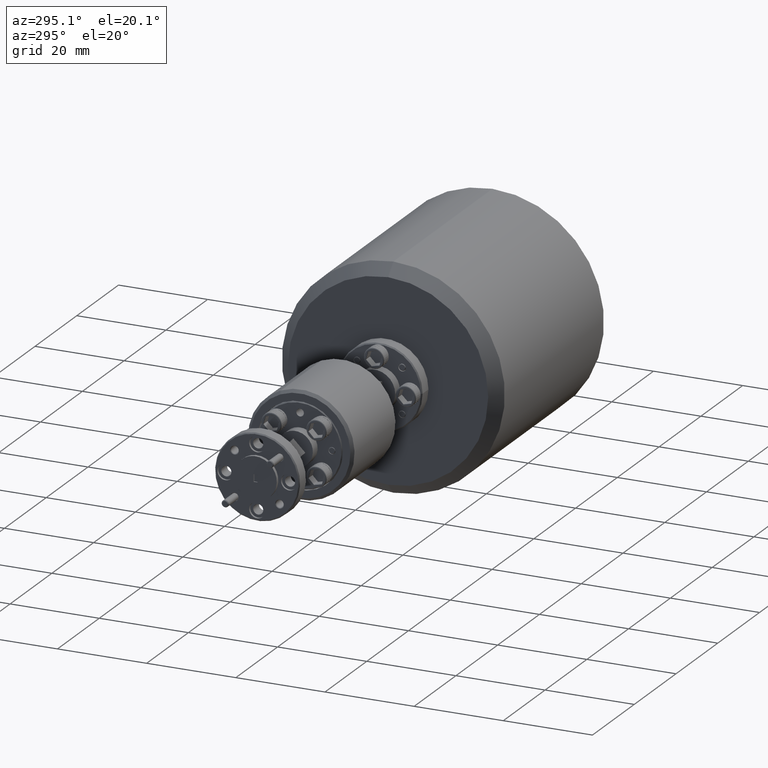
[diagram: clean part render]
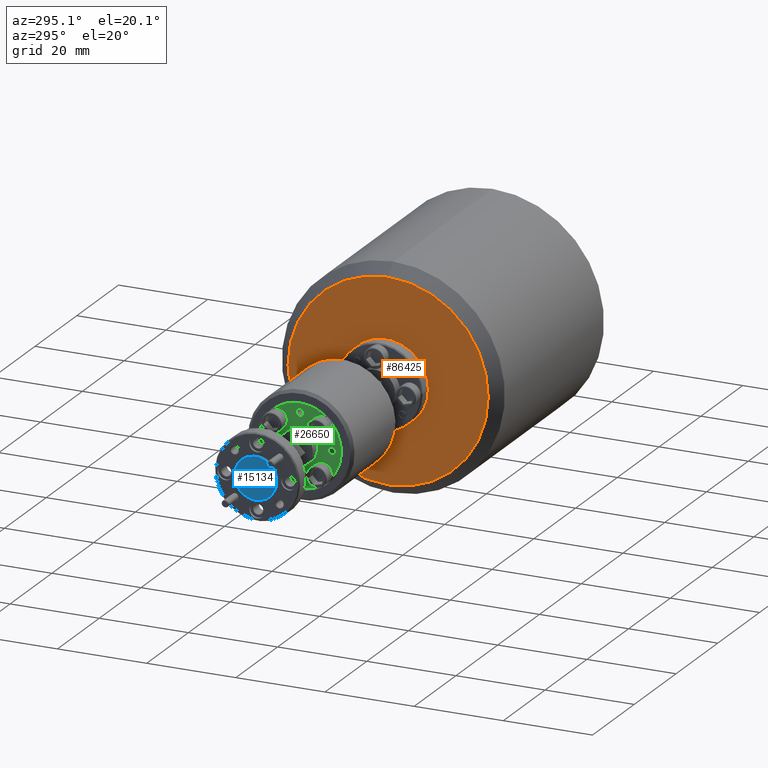
[diagram: same view with three faces highlighted in distinct colors, each labeled with its STEP entity id]
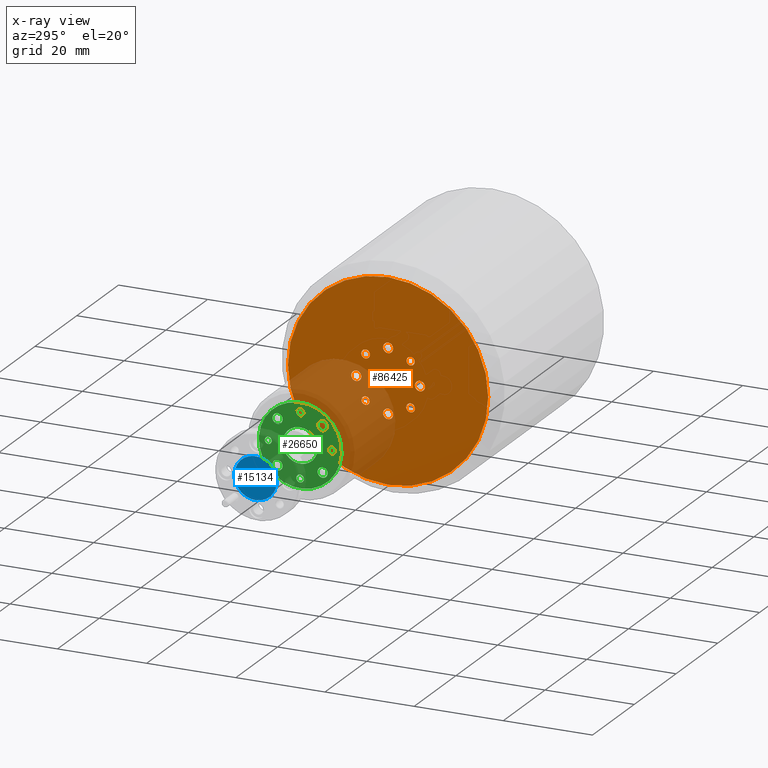
[diagram: x-ray of the same camera — body ghosted, the three highlighted faces saturated]
A machine part, auxiliary view with three faces highlighted in distinct colors.
The next image is the same camera in x-ray (body ghosted, the three faces saturated) — at least one of them is partly hidden behind the body in this view.
Their STEP definitions:

[orange] entity #86425 — the highlighted planar face has unit normal (-1, 0, 0).
#535 = VERTEX_POINT ( 'NONE', #74663 ) ;
#812 = VERTEX_POINT ( 'NONE', #90064 ) ;
#909 = AXIS2_PLACEMENT_3D ( 'NONE', #101327, #20185, #20886 ) ;
#1789 = ORIENTED_EDGE ( 'NONE', *, *, #17809, .F. ) ;
#1866 = EDGE_CURVE ( 'NONE', #62668, #101204, #70706, .T. ) ;
#2116 = EDGE_CURVE ( 'NONE', #50472, #31607, #41455, .T. ) ;
#2375 = VERTEX_POINT ( 'NONE', #60095 ) ;
#2495 = ORIENTED_EDGE ( 'NONE', *, *, #11476, .F. ) ;
#2834 = VERTEX_POINT ( 'NONE', #27689 ) ;
#3032 = FACE_BOUND ( 'NONE', #82698, .T. ) ;
#3375 = EDGE_CURVE ( 'NONE', #30090, #74505, #29817, .T. ) ;
#3438 = DIRECTION ( 'NONE',  ( 0.0000000000000000000, 0.0000000000000000000, 1.000000000000000000 ) ) ;
#3970 = VERTEX_POINT ( 'NONE', #10180 ) ;
#5184 = CARTESIAN_POINT ( 'NONE',  ( 4.490802399633938800, 39.83549298320465900, 31.58199548229007900 ) ) ;
#5553 = ORIENTED_EDGE ( 'NONE', *, *, #78928, .F. ) ;
#5640 = VERTEX_POINT ( 'NONE', #52466 ) ;
#6348 = DIRECTION ( 'NONE',  ( -1.000000000000000000, -0.0000000000000000000, -0.0000000000000000000 ) ) ;
#7436 = CIRCLE ( 'NONE', #34551, 1.130300000000000700 ) ;
#7467 = EDGE_CURVE ( 'NONE', #101204, #68914, #90031, .T. ) ;
#7488 = ORIENTED_EDGE ( 'NONE', *, *, #65840, .F. ) ;
#7533 = AXIS2_PLACEMENT_3D ( 'NONE', #15564, #31212, #64905 ) ;
#8604 = EDGE_CURVE ( 'NONE', #98188, #56234, #41844, .T. ) ;
#8811 = ORIENTED_EDGE ( 'NONE', *, *, #101496, .F. ) ;
#9626 = CARTESIAN_POINT ( 'NONE',  ( 4.490802399633938800, 34.78858904316376800, 29.49149942233091100 ) ) ;
#9819 = CARTESIAN_POINT ( 'NONE',  ( 4.490802399633938800, 34.78858904316376800, 43.77264942233091500 ) ) ;
#10180 = CARTESIAN_POINT ( 'NONE',  ( 4.490802399633938800, 35.91888458388530100, 43.76947442233272800 ) ) ;
#10282 = DIRECTION ( 'NONE',  ( 1.000000000000000000, -0.0000000000000000000, -0.0000000000000000000 ) ) ;
#10689 = FACE_OUTER_BOUND ( 'NONE', #21624, .T. ) ;
#11013 = DIRECTION ( 'NONE',  ( 0.0000000000000000000, 0.0000000000000000000, 1.000000000000000000 ) ) ;
#11293 = VERTEX_POINT ( 'NONE', #17413 ) ;
#11476 = EDGE_CURVE ( 'NONE', #56577, #90159, #53044, .T. ) ;
#11696 = CARTESIAN_POINT ( 'NONE',  ( 4.490802399633938800, 29.74168510312287600, 41.67580336237174500 ) ) ;
#11984 = ORIENTED_EDGE ( 'NONE', *, *, #40346, .F. ) ;
#11998 = EDGE_CURVE ( 'NONE', #91544, #41676, #41589, .T. ) ;
#12208 = AXIS2_PLACEMENT_3D ( 'NONE', #41726, #49860, #98432 ) ;
#12281 = CIRCLE ( 'NONE', #38792, 0.9207499999999979600 ) ;
#12807 = VERTEX_POINT ( 'NONE', #39632 ) ;
#13026 = DIRECTION ( 'NONE',  ( 0.0000000000000000000, 0.0000000000000000000, 1.000000000000000000 ) ) ;
#13109 = EDGE_CURVE ( 'NONE', #14314, #79910, #12281, .T. ) ;
#13198 = FACE_BOUND ( 'NONE', #77899, .T. ) ;
#13614 = AXIS2_PLACEMENT_3D ( 'NONE', #39358, #55275, #72011 ) ;
#13827 = AXIS2_PLACEMENT_3D ( 'NONE', #9819, #34984, #98759 ) ;
#14314 = VERTEX_POINT ( 'NONE', #87419 ) ;
#14425 = FACE_BOUND ( 'NONE', #17844, .T. ) ;
#14848 = EDGE_CURVE ( 'NONE', #2375, #56577, #86833, .T. ) ;
#15265 = CARTESIAN_POINT ( 'NONE',  ( 4.490802399633938800, 27.64801404316191500, 37.75919496305244400 ) ) ;
#15406 = VERTEX_POINT ( 'NONE', #17608 ) ;
#15413 = CARTESIAN_POINT ( 'NONE',  ( 4.490802399633938800, 41.92916404316562100, 35.49860388160937700 ) ) ;
#15446 = CIRCLE ( 'NONE', #13827, 1.130299999999986800 ) ;
#15449 = AXIS2_PLACEMENT_3D ( 'NONE', #105224, #48109, #55934 ) ;
#15564 = CARTESIAN_POINT ( 'NONE',  ( 4.490802399633938800, 29.74168510312287600, 41.67580336237174500 ) ) ;
#15869 = EDGE_LOOP ( 'NONE', ( #33748, #41042, #8811, #104111 ) ) ;
#16828 = DIRECTION ( 'NONE',  ( 0.0000000000000000000, 0.0000000000000000000, 1.000000000000000000 ) ) ;
#16855 = CIRCLE ( 'NONE', #86363, 0.9778999999999968800 ) ;
#17413 = CARTESIAN_POINT ( 'NONE',  ( 4.490802399633938800, 35.42358904316377300, 37.89889942233091300 ) ) ;
#17608 = CARTESIAN_POINT ( 'NONE',  ( 4.490802399633938800, 41.92916404316546400, 37.75919496305244400 ) ) ;
#17809 = EDGE_CURVE ( 'NONE', #15406, #75875, #43421, .T. ) ;
#17844 = EDGE_LOOP ( 'NONE', ( #27220, #97898 ) ) ;
#17849 = DIRECTION ( 'NONE',  ( -1.000000000000000000, -0.0000000000000000000, -0.0000000000000000000 ) ) ;
#17859 = EDGE_CURVE ( 'NONE', #38778, #3970, #96713, .T. ) ;
#18892 = EDGE_LOOP ( 'NONE', ( #32872, #48299, #80014, #68879, #41364, #25110 ) ) ;
#19201 = VERTEX_POINT ( 'NONE', #46557 ) ;
#20185 = DIRECTION ( 'NONE',  ( -1.000000000000000000, -0.0000000000000000000, -0.0000000000000000000 ) ) ;
#20245 = CIRCLE ( 'NONE', #59397, 1.130299999999986800 ) ;
#20840 = PLANE ( 'NONE',  #47114 ) ;
#20886 = DIRECTION ( 'NONE',  ( 0.0000000000000000000, 0.0000000000000000000, 1.000000000000000000 ) ) ;
#21087 = ORIENTED_EDGE ( 'NONE', *, *, #8604, .F. ) ;
#21265 = CARTESIAN_POINT ( 'NONE',  ( 4.490802399633938800, 27.64483904316376300, 36.62889942233091000 ) ) ;
#21518 = ORIENTED_EDGE ( 'NONE', *, *, #42398, .F. ) ;
#21624 = EDGE_LOOP ( 'NONE', ( #62842, #55553 ) ) ;
#22291 = AXIS2_PLACEMENT_3D ( 'NONE', #9626, #90416, #91448 ) ;
#22454 = EDGE_CURVE ( 'NONE', #79910, #14314, #53743, .T. ) ;
#23267 = EDGE_LOOP ( 'NONE', ( #21087, #56203 ) ) ;
#23636 = ORIENTED_EDGE ( 'NONE', *, *, #36342, .F. ) ;
#23913 = VECTOR ( 'NONE', #36351, 1000.000000000000000 ) ;
#24032 = AXIS2_PLACEMENT_3D ( 'NONE', #103836, #6348, #47067 ) ;
#24593 = DIRECTION ( 'NONE',  ( -1.000000000000000000, -0.0000000000000000000, -0.0000000000000000000 ) ) ;
#24608 = FACE_BOUND ( 'NONE', #23267, .T. ) ;
#24645 = AXIS2_PLACEMENT_3D ( 'NONE', #34765, #51683, #68100 ) ;
#24741 = VERTEX_POINT ( 'NONE', #99222 ) ;
#24786 = EDGE_CURVE ( 'NONE', #24741, #812, #37092, .T. ) ;
#24961 = DIRECTION ( 'NONE',  ( -1.000000000000000000, -0.0000000000000000000, -0.0000000000000000000 ) ) ;
#25110 = ORIENTED_EDGE ( 'NONE', *, *, #65501, .F. ) ;
#25325 = DIRECTION ( 'NONE',  ( 0.0000000000000000000, 0.0000000000000000000, 1.000000000000000000 ) ) ;
#25975 = DIRECTION ( 'NONE',  ( -1.000000000000000000, -0.0000000000000000000, -0.0000000000000000000 ) ) ;
#26189 = ORIENTED_EDGE ( 'NONE', *, *, #14848, .F. ) ;
#26313 = DIRECTION ( 'NONE',  ( 0.0000000000000000000, 0.0000000000000000000, 1.000000000000000000 ) ) ;
#26447 = DIRECTION ( 'NONE',  ( -1.000000000000000000, -0.0000000000000000000, -0.0000000000000000000 ) ) ;
#26665 = CARTESIAN_POINT ( 'NONE',  ( 4.490802399633938800, 27.64483904316376300, 36.62889942233091000 ) ) ;
#26923 = DIRECTION ( 'NONE',  ( 0.0000000000000000000, 0.0000000000000000000, -1.000000000000000000 ) ) ;
#27220 = ORIENTED_EDGE ( 'NONE', *, *, #85645, .F. ) ;
#27689 = CARTESIAN_POINT ( 'NONE',  ( 4.490802399633938800, 29.74168510312292600, 32.55989548229001700 ) ) ;
#28290 = CARTESIAN_POINT ( 'NONE',  ( 4.490802399633938800, 57.24853904316376000, 36.62889942233091000 ) ) ;
#28941 = LINE ( 'NONE', #101375, #96143 ) ;
#29817 = CIRCLE ( 'NONE', #84027, 1.130300000000000700 ) ;
#30090 = VERTEX_POINT ( 'NONE', #49208 ) ;
#31212 = DIRECTION ( 'NONE',  ( -1.000000000000000000, -0.0000000000000000000, -0.0000000000000000000 ) ) ;
#31607 = VERTEX_POINT ( 'NONE', #63014 ) ;
#32111 = CARTESIAN_POINT ( 'NONE',  ( 4.490802399633938800, 34.78858904316376800, 42.63599942233091200 ) ) ;
#32429 = CARTESIAN_POINT ( 'NONE',  ( 4.490802399633938800, 39.83549298320465900, 31.58199548229007900 ) ) ;
#32598 = ORIENTED_EDGE ( 'NONE', *, *, #13109, .F. ) ;
#32710 = EDGE_LOOP ( 'NONE', ( #70815, #35278 ) ) ;
#32872 = ORIENTED_EDGE ( 'NONE', *, *, #64663, .F. ) ;
#33748 = ORIENTED_EDGE ( 'NONE', *, *, #79290, .F. ) ;
#34206 = CARTESIAN_POINT ( 'NONE',  ( 4.490802399633938800, 27.64483904316376300, 36.62889942233091000 ) ) ;
#34551 = AXIS2_PLACEMENT_3D ( 'NONE', #67618, #26447, #83847 ) ;
#34765 = CARTESIAN_POINT ( 'NONE',  ( 4.490802399633938800, 41.93233904316376500, 36.62889942233091000 ) ) ;
#34866 = DIRECTION ( 'NONE',  ( 0.0000000000000000000, 0.0000000000000000000, 1.000000000000000000 ) ) ;
#34984 = DIRECTION ( 'NONE',  ( -1.000000000000000000, -0.0000000000000000000, -0.0000000000000000000 ) ) ;
#35278 = ORIENTED_EDGE ( 'NONE', *, *, #55249, .F. ) ;
#35367 = CARTESIAN_POINT ( 'NONE',  ( 4.490802399633938800, 34.15358904316377000, 35.35889942233091400 ) ) ;
#35859 = DIRECTION ( 'NONE',  ( -1.000000000000000000, -0.0000000000000000000, -0.0000000000000000000 ) ) ;
#36336 = CARTESIAN_POINT ( 'NONE',  ( 4.490802399633938800, 41.92598904316376700, 37.75919942233091600 ) ) ;
#36342 = EDGE_CURVE ( 'NONE', #75875, #535, #65612, .T. ) ;
#36351 = DIRECTION ( 'NONE',  ( 0.0000000000000000000, 1.000000000000000000, 0.0000000000000000000 ) ) ;
#36827 = ORIENTED_EDGE ( 'NONE', *, *, #80069, .F. ) ;
#37092 = CIRCLE ( 'NONE', #99146, 22.45994999999999200 ) ;
#37559 = CARTESIAN_POINT ( 'NONE',  ( 4.490802399633938800, 41.92598904316376700, 36.62889942233091000 ) ) ;
#37752 = CIRCLE ( 'NONE', #909, 1.130300000000000700 ) ;
#38625 = AXIS2_PLACEMENT_3D ( 'NONE', #51087, #17849, #34866 ) ;
#38778 = VERTEX_POINT ( 'NONE', #71822 ) ;
#38792 = AXIS2_PLACEMENT_3D ( 'NONE', #5184, #69425, #84962 ) ;
#39358 = CARTESIAN_POINT ( 'NONE',  ( 4.490802399633938800, 34.78858904316376800, 29.48514942233091300 ) ) ;
#39632 = CARTESIAN_POINT ( 'NONE',  ( 4.490802399633938800, 27.64801404316191500, 35.49860388160937700 ) ) ;
#39879 = VERTEX_POINT ( 'NONE', #45636 ) ;
#40285 = EDGE_CURVE ( 'NONE', #86826, #30090, #7436, .T. ) ;
#40346 = EDGE_CURVE ( 'NONE', #19201, #11293, #56859, .T. ) ;
#41042 = ORIENTED_EDGE ( 'NONE', *, *, #17859, .F. ) ;
#41218 = CARTESIAN_POINT ( 'NONE',  ( 4.490802399633938800, 41.92598904316376700, 36.62889942233091000 ) ) ;
#41364 = ORIENTED_EDGE ( 'NONE', *, *, #73532, .F. ) ;
#41455 = LINE ( 'NONE', #35367, #75782 ) ;
#41589 = CIRCLE ( 'NONE', #12208, 0.9778999999999968800 ) ;
#41676 = VERTEX_POINT ( 'NONE', #89758 ) ;
#41726 = CARTESIAN_POINT ( 'NONE',  ( 4.490802399633938800, 39.83549298320460300, 41.67580336237180200 ) ) ;
#41844 = CIRCLE ( 'NONE', #42488, 0.9207499999999979600 ) ;
#41960 = DIRECTION ( 'NONE',  ( 0.0000000000000000000, 0.0000000000000000000, 1.000000000000000000 ) ) ;
#42215 = CARTESIAN_POINT ( 'NONE',  ( 4.490802399633938800, 39.83549298320460300, 42.65370336237180000 ) ) ;
#42398 = EDGE_CURVE ( 'NONE', #11293, #50472, #95263, .T. ) ;
#42488 = AXIS2_PLACEMENT_3D ( 'NONE', #11696, #60663, #11013 ) ;
#43421 = CIRCLE ( 'NONE', #24032, 1.130299999999986800 ) ;
#43433 = VERTEX_POINT ( 'NONE', #81139 ) ;
#43526 = DIRECTION ( 'NONE',  ( -1.000000000000000000, -0.0000000000000000000, -0.0000000000000000000 ) ) ;
#43790 = AXIS2_PLACEMENT_3D ( 'NONE', #21265, #35859, #45348 ) ;
#45348 = DIRECTION ( 'NONE',  ( 0.0000000000000000000, 0.0000000000000000000, 1.000000000000000000 ) ) ;
#45400 = AXIS2_PLACEMENT_3D ( 'NONE', #73622, #24961, #74650 ) ;
#45636 = CARTESIAN_POINT ( 'NONE',  ( 4.490802399633938800, 29.74168510312292600, 30.60409548229002000 ) ) ;
#46557 = CARTESIAN_POINT ( 'NONE',  ( 4.490802399633938800, 34.15358904316377000, 37.89889942233091300 ) ) ;
#46868 = EDGE_CURVE ( 'NONE', #39879, #2834, #94052, .T. ) ;
#47067 = DIRECTION ( 'NONE',  ( 0.0000000000000000000, 0.0000000000000000000, 1.000000000000000000 ) ) ;
#47114 = AXIS2_PLACEMENT_3D ( 'NONE', #28290, #70163, #13026 ) ;
#48109 = DIRECTION ( 'NONE',  ( -1.000000000000000000, -0.0000000000000000000, -0.0000000000000000000 ) ) ;
#48281 = CIRCLE ( 'NONE', #68127, 1.130300000000000700 ) ;
#48299 = ORIENTED_EDGE ( 'NONE', *, *, #7467, .F. ) ;
#48669 = FACE_BOUND ( 'NONE', #18892, .T. ) ;
#49094 = VERTEX_POINT ( 'NONE', #49439 ) ;
#49208 = CARTESIAN_POINT ( 'NONE',  ( 4.490802399633938800, 41.92598904316376700, 35.49859942233091200 ) ) ;
#49439 = CARTESIAN_POINT ( 'NONE',  ( 4.490802399633938800, 33.65829350244223400, 43.76947442233272800 ) ) ;
#49860 = DIRECTION ( 'NONE',  ( -1.000000000000000000, -0.0000000000000000000, -0.0000000000000000000 ) ) ;
#50074 = AXIS2_PLACEMENT_3D ( 'NONE', #32429, #98320, #25325 ) ;
#50472 = VERTEX_POINT ( 'NONE', #63738 ) ;
#51087 = CARTESIAN_POINT ( 'NONE',  ( 4.490802399633938800, 34.78858904316376800, 29.49149942233091100 ) ) ;
#51193 = FACE_BOUND ( 'NONE', #32710, .T. ) ;
#51683 = DIRECTION ( 'NONE',  ( -1.000000000000000000, -0.0000000000000000000, -0.0000000000000000000 ) ) ;
#52266 = DIRECTION ( 'NONE',  ( 0.0000000000000000000, 0.0000000000000000000, 1.000000000000000000 ) ) ;
#52466 = CARTESIAN_POINT ( 'NONE',  ( 4.490802399633938800, 27.65118904316376500, 37.75919942233091600 ) ) ;
#52627 = DIRECTION ( 'NONE',  ( -1.000000000000000000, -0.0000000000000000000, -0.0000000000000000000 ) ) ;
#53044 = CIRCLE ( 'NONE', #22291, 1.130299999999997200 ) ;
#53616 = CARTESIAN_POINT ( 'NONE',  ( 4.490802399633938800, 34.78858904316376800, 30.62179942233090900 ) ) ;
#53743 = CIRCLE ( 'NONE', #50074, 0.9207499999999979600 ) ;
#53761 = FACE_BOUND ( 'NONE', #68780, .T. ) ;
#55249 = EDGE_CURVE ( 'NONE', #41676, #91544, #16855, .T. ) ;
#55275 = DIRECTION ( 'NONE',  ( -1.000000000000000000, -0.0000000000000000000, -0.0000000000000000000 ) ) ;
#55553 = ORIENTED_EDGE ( 'NONE', *, *, #88459, .F. ) ;
#55934 = DIRECTION ( 'NONE',  ( 0.0000000000000000000, 0.0000000000000000000, 1.000000000000000000 ) ) ;
#56203 = ORIENTED_EDGE ( 'NONE', *, *, #62234, .F. ) ;
#56234 = VERTEX_POINT ( 'NONE', #67077 ) ;
#56473 = DIRECTION ( 'NONE',  ( 0.0000000000000000000, 0.0000000000000000000, 1.000000000000000000 ) ) ;
#56577 = VERTEX_POINT ( 'NONE', #96629 ) ;
#56859 = LINE ( 'NONE', #84895, #23913 ) ;
#58081 = DIRECTION ( 'NONE',  ( -0.0000000000000000000, -1.000000000000000000, -0.0000000000000000000 ) ) ;
#59025 = ORIENTED_EDGE ( 'NONE', *, *, #2116, .F. ) ;
#59033 = EDGE_CURVE ( 'NONE', #82099, #49094, #60739, .T. ) ;
#59397 = AXIS2_PLACEMENT_3D ( 'NONE', #26665, #92530, #91509 ) ;
#60095 = CARTESIAN_POINT ( 'NONE',  ( 4.490802399633938800, 35.91888458388530100, 29.48832442232917500 ) ) ;
#60663 = DIRECTION ( 'NONE',  ( -1.000000000000000000, -0.0000000000000000000, -0.0000000000000000000 ) ) ;
#60739 = CIRCLE ( 'NONE', #87270, 1.130300000000000700 ) ;
#62072 = DIRECTION ( 'NONE',  ( 0.0000000000000000000, 0.0000000000000000000, 1.000000000000000000 ) ) ;
#62234 = EDGE_CURVE ( 'NONE', #56234, #98188, #77014, .T. ) ;
#62277 = AXIS2_PLACEMENT_3D ( 'NONE', #72071, #87929, #63905 ) ;
#62668 = VERTEX_POINT ( 'NONE', #85324 ) ;
#62842 = ORIENTED_EDGE ( 'NONE', *, *, #24786, .F. ) ;
#63014 = CARTESIAN_POINT ( 'NONE',  ( 4.490802399633938800, 34.15358904316376300, 35.35889942233091400 ) ) ;
#63114 = CARTESIAN_POINT ( 'NONE',  ( 4.490802399633938800, 34.78858904316376800, 43.77264942233091500 ) ) ;
#63622 = AXIS2_PLACEMENT_3D ( 'NONE', #81386, #97973, #16828 ) ;
#63738 = CARTESIAN_POINT ( 'NONE',  ( 4.490802399633938800, 35.42358904316376600, 35.35889942233091400 ) ) ;
#63905 = DIRECTION ( 'NONE',  ( 0.0000000000000000000, 0.0000000000000000000, -1.000000000000000000 ) ) ;
#64031 = EDGE_CURVE ( 'NONE', #31607, #19201, #28941, .T. ) ;
#64663 = EDGE_CURVE ( 'NONE', #68914, #5640, #48281, .T. ) ;
#64905 = DIRECTION ( 'NONE',  ( 0.0000000000000000000, 0.0000000000000000000, 1.000000000000000000 ) ) ;
#65501 = EDGE_CURVE ( 'NONE', #5640, #43433, #98960, .T. ) ;
#65612 = CIRCLE ( 'NONE', #24645, 1.130299999999986800 ) ;
#65840 = EDGE_CURVE ( 'NONE', #74505, #15406, #95085, .T. ) ;
#65948 = EDGE_CURVE ( 'NONE', #12807, #62668, #20245, .T. ) ;
#67077 = CARTESIAN_POINT ( 'NONE',  ( 4.490802399633938800, 29.74168510312287600, 40.75505336237174700 ) ) ;
#67617 = CIRCLE ( 'NONE', #62277, 22.45994999999999200 ) ;
#67618 = CARTESIAN_POINT ( 'NONE',  ( 4.490802399633938800, 41.92598904316376700, 36.62889942233091000 ) ) ;
#68100 = DIRECTION ( 'NONE',  ( 0.0000000000000000000, 0.0000000000000000000, 1.000000000000000000 ) ) ;
#68127 = AXIS2_PLACEMENT_3D ( 'NONE', #77577, #85664, #3438 ) ;
#68139 = AXIS2_PLACEMENT_3D ( 'NONE', #105062, #24593, #56473 ) ;
#68409 = DIRECTION ( 'NONE',  ( 0.0000000000000000000, 0.0000000000000000000, 1.000000000000000000 ) ) ;
#68780 = EDGE_LOOP ( 'NONE', ( #59025, #21518, #11984, #95463 ) ) ;
#68879 = ORIENTED_EDGE ( 'NONE', *, *, #65948, .F. ) ;
#68914 = VERTEX_POINT ( 'NONE', #15265 ) ;
#69425 = DIRECTION ( 'NONE',  ( -1.000000000000000000, -0.0000000000000000000, -0.0000000000000000000 ) ) ;
#70163 = DIRECTION ( 'NONE',  ( -1.000000000000000000, 0.0000000000000000000, 0.0000000000000000000 ) ) ;
#70706 = CIRCLE ( 'NONE', #43790, 1.130299999999986800 ) ;
#70815 = ORIENTED_EDGE ( 'NONE', *, *, #11998, .F. ) ;
#71822 = CARTESIAN_POINT ( 'NONE',  ( 4.490802399633938800, 34.78858904316376800, 44.90294942233090600 ) ) ;
#71983 = DIRECTION ( 'NONE',  ( 0.0000000000000000000, 0.0000000000000000000, 1.000000000000000000 ) ) ;
#72011 = DIRECTION ( 'NONE',  ( 0.0000000000000000000, 0.0000000000000000000, 1.000000000000000000 ) ) ;
#72071 = CARTESIAN_POINT ( 'NONE',  ( 4.490802399633938800, 34.78858904316376800, 36.62889942233091000 ) ) ;
#73532 = EDGE_CURVE ( 'NONE', #43433, #12807, #37752, .T. ) ;
#73622 = CARTESIAN_POINT ( 'NONE',  ( 4.490802399633938800, 41.93233904316376500, 36.62889942233091000 ) ) ;
#74505 = VERTEX_POINT ( 'NONE', #36336 ) ;
#74650 = DIRECTION ( 'NONE',  ( 0.0000000000000000000, 0.0000000000000000000, 1.000000000000000000 ) ) ;
#74663 = CARTESIAN_POINT ( 'NONE',  ( 4.490802399633938800, 41.93233904316376500, 35.49859942233092600 ) ) ;
#75782 = VECTOR ( 'NONE', #58081, 1000.000000000000000 ) ;
#75875 = VERTEX_POINT ( 'NONE', #84182 ) ;
#76199 = CARTESIAN_POINT ( 'NONE',  ( 4.490802399633938800, 27.65118904316376500, 36.62889942233091000 ) ) ;
#76228 = CARTESIAN_POINT ( 'NONE',  ( 4.490802399633938800, 34.78858904316376800, 36.62889942233091000 ) ) ;
#77014 = CIRCLE ( 'NONE', #7533, 0.9207499999999979600 ) ;
#77577 = CARTESIAN_POINT ( 'NONE',  ( 4.490802399633938800, 27.65118904316376500, 36.62889942233091000 ) ) ;
#77899 = EDGE_LOOP ( 'NONE', ( #103157, #36827, #23636, #1789, #7488, #93395 ) ) ;
#78165 = AXIS2_PLACEMENT_3D ( 'NONE', #34206, #98672, #41960 ) ;
#78928 = EDGE_CURVE ( 'NONE', #90159, #2375, #96944, .T. ) ;
#79113 = AXIS2_PLACEMENT_3D ( 'NONE', #41218, #25975, #26313 ) ;
#79290 = EDGE_CURVE ( 'NONE', #3970, #82099, #104510, .T. ) ;
#79910 = VERTEX_POINT ( 'NONE', #97251 ) ;
#80014 = ORIENTED_EDGE ( 'NONE', *, *, #1866, .F. ) ;
#80069 = EDGE_CURVE ( 'NONE', #535, #86826, #81731, .T. ) ;
#81139 = CARTESIAN_POINT ( 'NONE',  ( 4.490802399633938800, 27.65118904316376500, 35.49859942233091200 ) ) ;
#81386 = CARTESIAN_POINT ( 'NONE',  ( 4.490802399633938800, 29.74168510312292600, 31.58199548229002200 ) ) ;
#81731 = CIRCLE ( 'NONE', #45400, 1.130299999999986800 ) ;
#82099 = VERTEX_POINT ( 'NONE', #32111 ) ;
#82145 = CARTESIAN_POINT ( 'NONE',  ( 4.490802399633938800, 35.42358904316377300, 37.89889942233091300 ) ) ;
#82698 = EDGE_LOOP ( 'NONE', ( #32598, #87794 ) ) ;
#83847 = DIRECTION ( 'NONE',  ( 0.0000000000000000000, 0.0000000000000000000, 1.000000000000000000 ) ) ;
#84027 = AXIS2_PLACEMENT_3D ( 'NONE', #37559, #102414, #62072 ) ;
#84182 = CARTESIAN_POINT ( 'NONE',  ( 4.490802399633938800, 41.93233904316376500, 37.75919942233090200 ) ) ;
#84895 = CARTESIAN_POINT ( 'NONE',  ( 4.490802399633938800, 34.15358904316377000, 37.89889942233091300 ) ) ;
#84962 = DIRECTION ( 'NONE',  ( 0.0000000000000000000, 0.0000000000000000000, 1.000000000000000000 ) ) ;
#85133 = AXIS2_PLACEMENT_3D ( 'NONE', #76199, #43526, #68409 ) ;
#85324 = CARTESIAN_POINT ( 'NONE',  ( 4.490802399633938800, 27.64483904316376300, 35.49859942233092600 ) ) ;
#85645 = EDGE_CURVE ( 'NONE', #2834, #39879, #90609, .T. ) ;
#85664 = DIRECTION ( 'NONE',  ( -1.000000000000000000, -0.0000000000000000000, -0.0000000000000000000 ) ) ;
#86363 = AXIS2_PLACEMENT_3D ( 'NONE', #90122, #91516, #98637 ) ;
#86425 = ADVANCED_FACE ( 'NONE', ( #14425, #51193, #3032, #24608, #13198, #48669, #98127, #96886, #53761, #10689 ), #20840, .T. ) ;
#86826 = VERTEX_POINT ( 'NONE', #15413 ) ;
#86833 = CIRCLE ( 'NONE', #13614, 1.130299999999990300 ) ;
#87270 = AXIS2_PLACEMENT_3D ( 'NONE', #100145, #52627, #52266 ) ;
#87419 = CARTESIAN_POINT ( 'NONE',  ( 4.490802399633938800, 39.83549298320465900, 32.50274548229007400 ) ) ;
#87794 = ORIENTED_EDGE ( 'NONE', *, *, #22454, .F. ) ;
#87929 = DIRECTION ( 'NONE',  ( 1.000000000000000000, -0.0000000000000000000, -0.0000000000000000000 ) ) ;
#88459 = EDGE_CURVE ( 'NONE', #812, #24741, #67617, .T. ) ;
#89758 = CARTESIAN_POINT ( 'NONE',  ( 4.490802399633938800, 39.83549298320460300, 40.69790336237180400 ) ) ;
#90031 = CIRCLE ( 'NONE', #78165, 1.130299999999986800 ) ;
#90064 = CARTESIAN_POINT ( 'NONE',  ( 4.490802399633938800, 34.78858904316376800, 59.08884942233090200 ) ) ;
#90122 = CARTESIAN_POINT ( 'NONE',  ( 4.490802399633938800, 39.83549298320460300, 41.67580336237180200 ) ) ;
#90159 = VERTEX_POINT ( 'NONE', #53616 ) ;
#90200 = VECTOR ( 'NONE', #90242, 1000.000000000000000 ) ;
#90242 = DIRECTION ( 'NONE',  ( 0.0000000000000000000, -1.707404996040164300E-016, -1.000000000000000000 ) ) ;
#90416 = DIRECTION ( 'NONE',  ( -1.000000000000000000, -0.0000000000000000000, -0.0000000000000000000 ) ) ;
#90609 = CIRCLE ( 'NONE', #68139, 0.9778999999999968800 ) ;
#91335 = CARTESIAN_POINT ( 'NONE',  ( 4.490802399633938800, 29.74168510312287600, 42.59655336237174300 ) ) ;
#91448 = DIRECTION ( 'NONE',  ( 0.0000000000000000000, 0.0000000000000000000, 1.000000000000000000 ) ) ;
#91509 = DIRECTION ( 'NONE',  ( 0.0000000000000000000, 0.0000000000000000000, 1.000000000000000000 ) ) ;
#91516 = DIRECTION ( 'NONE',  ( -1.000000000000000000, -0.0000000000000000000, -0.0000000000000000000 ) ) ;
#91544 = VERTEX_POINT ( 'NONE', #42215 ) ;
#92530 = DIRECTION ( 'NONE',  ( -1.000000000000000000, -0.0000000000000000000, -0.0000000000000000000 ) ) ;
#93395 = ORIENTED_EDGE ( 'NONE', *, *, #3375, .F. ) ;
#94052 = CIRCLE ( 'NONE', #63622, 0.9778999999999968800 ) ;
#95085 = CIRCLE ( 'NONE', #79113, 1.130300000000000700 ) ;
#95263 = LINE ( 'NONE', #82145, #90200 ) ;
#95463 = ORIENTED_EDGE ( 'NONE', *, *, #64031, .F. ) ;
#95643 = DIRECTION ( 'NONE',  ( -1.000000000000000000, -0.0000000000000000000, -0.0000000000000000000 ) ) ;
#96143 = VECTOR ( 'NONE', #98918, 1000.000000000000000 ) ;
#96629 = CARTESIAN_POINT ( 'NONE',  ( 4.490802399633938800, 33.65829350244223400, 29.48832442232910000 ) ) ;
#96713 = CIRCLE ( 'NONE', #102115, 1.130299999999986800 ) ;
#96886 = FACE_BOUND ( 'NONE', #15869, .T. ) ;
#96944 = CIRCLE ( 'NONE', #38625, 1.130299999999997200 ) ;
#97251 = CARTESIAN_POINT ( 'NONE',  ( 4.490802399633938800, 39.83549298320465900, 30.66124548229008100 ) ) ;
#97898 = ORIENTED_EDGE ( 'NONE', *, *, #46868, .F. ) ;
#97973 = DIRECTION ( 'NONE',  ( -1.000000000000000000, -0.0000000000000000000, -0.0000000000000000000 ) ) ;
#98127 = FACE_BOUND ( 'NONE', #102560, .T. ) ;
#98188 = VERTEX_POINT ( 'NONE', #91335 ) ;
#98320 = DIRECTION ( 'NONE',  ( -1.000000000000000000, -0.0000000000000000000, -0.0000000000000000000 ) ) ;
#98432 = DIRECTION ( 'NONE',  ( 0.0000000000000000000, 0.0000000000000000000, 1.000000000000000000 ) ) ;
#98637 = DIRECTION ( 'NONE',  ( 0.0000000000000000000, 0.0000000000000000000, 1.000000000000000000 ) ) ;
#98672 = DIRECTION ( 'NONE',  ( -1.000000000000000000, -0.0000000000000000000, -0.0000000000000000000 ) ) ;
#98759 = DIRECTION ( 'NONE',  ( 0.0000000000000000000, 0.0000000000000000000, 1.000000000000000000 ) ) ;
#98918 = DIRECTION ( 'NONE',  ( -0.0000000000000000000, 1.707404996040164300E-016, 1.000000000000000000 ) ) ;
#98960 = CIRCLE ( 'NONE', #85133, 1.130300000000000700 ) ;
#99146 = AXIS2_PLACEMENT_3D ( 'NONE', #76228, #10282, #26923 ) ;
#99222 = CARTESIAN_POINT ( 'NONE',  ( 4.490802399633938800, 34.78858904316376800, 14.16894942233092000 ) ) ;
#100145 = CARTESIAN_POINT ( 'NONE',  ( 4.490802399633938800, 34.78858904316376800, 43.76629942233091700 ) ) ;
#101204 = VERTEX_POINT ( 'NONE', #102022 ) ;
#101327 = CARTESIAN_POINT ( 'NONE',  ( 4.490802399633938800, 27.65118904316376500, 36.62889942233091000 ) ) ;
#101375 = CARTESIAN_POINT ( 'NONE',  ( 4.490802399633938800, 34.15358904316377000, 37.89889942233091300 ) ) ;
#101496 = EDGE_CURVE ( 'NONE', #49094, #38778, #15446, .T. ) ;
#102022 = CARTESIAN_POINT ( 'NONE',  ( 4.490802399633938800, 27.64483904316376300, 37.75919942233090200 ) ) ;
#102115 = AXIS2_PLACEMENT_3D ( 'NONE', #63114, #95643, #71983 ) ;
#102414 = DIRECTION ( 'NONE',  ( -1.000000000000000000, -0.0000000000000000000, -0.0000000000000000000 ) ) ;
#102560 = EDGE_LOOP ( 'NONE', ( #2495, #26189, #5553 ) ) ;
#103157 = ORIENTED_EDGE ( 'NONE', *, *, #40285, .F. ) ;
#103836 = CARTESIAN_POINT ( 'NONE',  ( 4.490802399633938800, 41.93233904316376500, 36.62889942233091000 ) ) ;
#104111 = ORIENTED_EDGE ( 'NONE', *, *, #59033, .F. ) ;
#104510 = CIRCLE ( 'NONE', #15449, 1.130300000000000700 ) ;
#105062 = CARTESIAN_POINT ( 'NONE',  ( 4.490802399633938800, 29.74168510312292600, 31.58199548229002200 ) ) ;
#105224 = CARTESIAN_POINT ( 'NONE',  ( 4.490802399633938800, 34.78858904316376800, 43.76629942233091700 ) ) ;

[blue] entity #15134 — the highlighted planar face has unit normal (1, -0, -0).
#726 = CARTESIAN_POINT ( 'NONE',  ( -58.98379760036608800, 31.42099299776255400, 33.25495337693028800 ) ) ;
#3768 = LINE ( 'NONE', #100644, #97555 ) ;
#5038 = VERTEX_POINT ( 'NONE', #726 ) ;
#8107 = CIRCLE ( 'NONE', #99288, 4.762500000000001100 ) ;
#9426 = EDGE_CURVE ( 'NONE', #13909, #46566, #86183, .T. ) ;
#13909 = VERTEX_POINT ( 'NONE', #18404 ) ;
#14373 = EDGE_LOOP ( 'NONE', ( #104953, #83223 ) ) ;
#14733 = DIRECTION ( 'NONE',  ( -1.000000000000000000, 4.672865910726621600E-016, 1.331131158832845800E-015 ) ) ;
#15134 = ADVANCED_FACE ( 'NONE', ( #51204, #67816 ), #87082, .F. ) ;
#18307 = LINE ( 'NONE', #63505, #62585 ) ;
#18404 = CARTESIAN_POINT ( 'NONE',  ( -58.98379760036608100, 35.20133904316350000, 37.44804942233121600 ) ) ;
#19866 = ORIENTED_EDGE ( 'NONE', *, *, #24000, .F. ) ;
#20059 = ORIENTED_EDGE ( 'NONE', *, *, #97698, .F. ) ;
#24000 = EDGE_CURVE ( 'NONE', #46566, #104193, #104437, .T. ) ;
#25805 = CARTESIAN_POINT ( 'NONE',  ( -58.98379760036608100, 34.78858904316349800, 36.62254942233121800 ) ) ;
#27336 = ORIENTED_EDGE ( 'NONE', *, *, #9426, .F. ) ;
#27611 = VERTEX_POINT ( 'NONE', #47958 ) ;
#30411 = CARTESIAN_POINT ( 'NONE',  ( -58.98379760036608100, 31.42099299776256800, 39.99014546773216200 ) ) ;
#30759 = DIRECTION ( 'NONE',  ( 1.000000000000000000, -4.587260053057718500E-016, -1.322570573065955600E-015 ) ) ;
#36107 = CARTESIAN_POINT ( 'NONE',  ( -58.98379760036608100, 34.37583904316349500, 35.79704942233122000 ) ) ;
#39368 = AXIS2_PLACEMENT_3D ( 'NONE', #48004, #14733, #104763 ) ;
#44708 = EDGE_CURVE ( 'NONE', #104193, #27611, #18307, .T. ) ;
#45101 = EDGE_LOOP ( 'NONE', ( #19866, #27336, #20059, #94256 ) ) ;
#46566 = VERTEX_POINT ( 'NONE', #93421 ) ;
#47803 = DIRECTION ( 'NONE',  ( 1.345045177614310000E-015, 2.886579864025406200E-015, 1.000000000000000000 ) ) ;
#47958 = CARTESIAN_POINT ( 'NONE',  ( -58.98379760036608100, 34.37583904316350200, 37.44804942233122300 ) ) ;
#48004 = CARTESIAN_POINT ( 'NONE',  ( -58.98379760036608100, 34.78858904316349800, 36.62254942233121800 ) ) ;
#50940 = DIRECTION ( 'NONE',  ( -4.362514007574149200E-016, -1.000000000000000000, 2.720046410331633500E-015 ) ) ;
#51204 = FACE_BOUND ( 'NONE', #45101, .T. ) ;
#51242 = DIRECTION ( 'NONE',  ( -1.000000000000000000, 4.672865910726621600E-016, 1.331131158832845800E-015 ) ) ;
#52060 = DIRECTION ( 'NONE',  ( 4.362514007574152200E-016, 1.000000000000000000, -2.498001805406602200E-015 ) ) ;
#57101 = AXIS2_PLACEMENT_3D ( 'NONE', #30411, #30759, #86410 ) ;
#61575 = EDGE_CURVE ( 'NONE', #79201, #5038, #89667, .T. ) ;
#62585 = VECTOR ( 'NONE', #47803, 1000.000000000000000 ) ;
#63505 = CARTESIAN_POINT ( 'NONE',  ( -58.98379760036608100, 34.37583904316349500, 35.79704942233122000 ) ) ;
#64704 = VECTOR ( 'NONE', #73663, 1000.000000000000000 ) ;
#64778 = CARTESIAN_POINT ( 'NONE',  ( -58.98379760036608100, 35.20133904316349300, 35.79704942233121300 ) ) ;
#67816 = FACE_OUTER_BOUND ( 'NONE', #14373, .T. ) ;
#71996 = CARTESIAN_POINT ( 'NONE',  ( -58.98379760036608100, 34.37583904316349500, 35.79704942233122000 ) ) ;
#73663 = DIRECTION ( 'NONE',  ( -1.345045177614310400E-015, -2.664535259100375700E-015, -1.000000000000000000 ) ) ;
#77731 = CARTESIAN_POINT ( 'NONE',  ( -58.98379760036607400, 38.15618508856442800, 39.99014546773214100 ) ) ;
#77842 = VECTOR ( 'NONE', #50940, 1000.000000000000000 ) ;
#79201 = VERTEX_POINT ( 'NONE', #77731 ) ;
#83223 = ORIENTED_EDGE ( 'NONE', *, *, #61575, .T. ) ;
#86183 = LINE ( 'NONE', #64778, #64704 ) ;
#86410 = DIRECTION ( 'NONE',  ( -1.259566889871041200E-015, -0.7071067811865494600, -0.7071067811865455700 ) ) ;
#87082 = PLANE ( 'NONE',  #57101 ) ;
#89667 = CIRCLE ( 'NONE', #39368, 4.762500000000001100 ) ;
#93421 = CARTESIAN_POINT ( 'NONE',  ( -58.98379760036608100, 35.20133904316349300, 35.79704942233121300 ) ) ;
#94256 = ORIENTED_EDGE ( 'NONE', *, *, #44708, .F. ) ;
#94307 = EDGE_CURVE ( 'NONE', #5038, #79201, #8107, .T. ) ;
#97555 = VECTOR ( 'NONE', #52060, 1000.000000000000000 ) ;
#97698 = EDGE_CURVE ( 'NONE', #27611, #13909, #3768, .T. ) ;
#98793 = DIRECTION ( 'NONE',  ( -1.456985596620940000E-015, -0.7071067811865490200, -0.7071067811865460200 ) ) ;
#99288 = AXIS2_PLACEMENT_3D ( 'NONE', #25805, #51242, #98793 ) ;
#100644 = CARTESIAN_POINT ( 'NONE',  ( -58.98379760036608100, 34.37583904316350200, 37.44804942233122300 ) ) ;
#104193 = VERTEX_POINT ( 'NONE', #71996 ) ;
#104437 = LINE ( 'NONE', #36107, #77842 ) ;
#104763 = DIRECTION ( 'NONE',  ( -1.456985596620940000E-015, -0.7071067811865490200, -0.7071067811865460200 ) ) ;
#104953 = ORIENTED_EDGE ( 'NONE', *, *, #94307, .T. ) ;

[green] entity #26650 — the highlighted planar face has unit normal (1, -0, -0).
#2114 = AXIS2_PLACEMENT_3D ( 'NONE', #26601, #33026, #74884 ) ;
#3369 = CIRCLE ( 'NONE', #51391, 0.8508999999999987700 ) ;
#3432 = EDGE_CURVE ( 'NONE', #48699, #62161, #64057, .T. ) ;
#3857 = EDGE_CURVE ( 'NONE', #81201, #56939, #90645, .T. ) ;
#4252 = EDGE_CURVE ( 'NONE', #29903, #60734, #36065, .T. ) ;
#4427 = AXIS2_PLACEMENT_3D ( 'NONE', #80649, #65071, #64026 ) ;
#4681 = DIRECTION ( 'NONE',  ( 1.496903010226994300E-015, 0.7071067811865493500, 0.7071067811865455700 ) ) ;
#4698 = CARTESIAN_POINT ( 'NONE',  ( -37.64779760036606100, 34.78858904316348300, 36.62254942233119000 ) ) ;
#5983 = ORIENTED_EDGE ( 'NONE', *, *, #87242, .T. ) ;
#6219 = CARTESIAN_POINT ( 'NONE',  ( -37.64779760036606100, 35.39026620327513900, 30.08047658244282000 ) ) ;
#6427 = AXIS2_PLACEMENT_3D ( 'NONE', #92368, #11928, #84600 ) ;
#6866 = CARTESIAN_POINT ( 'NONE',  ( -37.64779760036606100, 39.83998311126487100, 31.57115535422977400 ) ) ;
#7703 = CARTESIAN_POINT ( 'NONE',  ( -37.64779760036607600, 29.73719497506207100, 31.57115535422980200 ) ) ;
#8032 = ORIENTED_EDGE ( 'NONE', *, *, #92507, .T. ) ;
#8322 = CARTESIAN_POINT ( 'NONE',  ( -37.64779760036606100, 42.48462479460923900, 37.17483517377688400 ) ) ;
#8508 = DIRECTION ( 'NONE',  ( 0.0000000000000000000, 0.7071067811865491300, 0.7071067811865460200 ) ) ;
#9084 = ORIENTED_EDGE ( 'NONE', *, *, #66838, .T. ) ;
#9337 = ORIENTED_EDGE ( 'NONE', *, *, #25633, .T. ) ;
#10278 = EDGE_CURVE ( 'NONE', #92462, #36096, #89316, .T. ) ;
#10637 = EDGE_LOOP ( 'NONE', ( #91863, #9084 ) ) ;
#11562 = DIRECTION ( 'NONE',  ( 1.000000000000000000, -4.672865910726621600E-016, -1.331131158832845800E-015 ) ) ;
#11928 = DIRECTION ( 'NONE',  ( 1.000000000000000000, -4.672865910726621600E-016, -1.331131158832845800E-015 ) ) ;
#12245 = EDGE_LOOP ( 'NONE', ( #5983, #61821 ) ) ;
#12466 = DIRECTION ( 'NONE',  ( 1.000000000000000000, -4.587260053057718500E-016, -1.322570573065955600E-015 ) ) ;
#12658 = FACE_BOUND ( 'NONE', #79898, .T. ) ;
#12867 = DIRECTION ( 'NONE',  ( -1.762482576557589000E-015, -0.7071067811865502400, -0.7071067811865449100 ) ) ;
#13206 = DIRECTION ( 'NONE',  ( -1.000000000000000000, 4.672865910726621600E-016, 1.331131158832845800E-015 ) ) ;
#13355 = CIRCLE ( 'NONE', #62577, 0.8509000000000012100 ) ;
#13361 = CIRCLE ( 'NONE', #75169, 0.7810499999999992400 ) ;
#13792 = ORIENTED_EDGE ( 'NONE', *, *, #29077, .T. ) ;
#13901 = AXIS2_PLACEMENT_3D ( 'NONE', #62377, #29375, #45291 ) ;
#14081 = EDGE_LOOP ( 'NONE', ( #18062, #56478 ) ) ;
#14572 = DIRECTION ( 'NONE',  ( 0.0000000000000000000, 0.7071067811865495700, 0.7071067811865454600 ) ) ;
#15372 = EDGE_LOOP ( 'NONE', ( #13792, #83383 ) ) ;
#15375 = AXIS2_PLACEMENT_3D ( 'NONE', #15530, #55237, #31857 ) ;
#15530 = CARTESIAN_POINT ( 'NONE',  ( -37.64779760036604700, 39.83998311126489300, 41.67394349043257800 ) ) ;
#15618 = CARTESIAN_POINT ( 'NONE',  ( -37.64779760036607600, 28.23300207478297700, 30.06696245395072600 ) ) ;
#15845 = DIRECTION ( 'NONE',  ( 1.000000000000000000, -4.672865910726621600E-016, -1.331131158832845800E-015 ) ) ;
#15940 = VERTEX_POINT ( 'NONE', #88370 ) ;
#15995 = ORIENTED_EDGE ( 'NONE', *, *, #18080, .T. ) ;
#16386 = AXIS2_PLACEMENT_3D ( 'NONE', #68204, #12466, #19572 ) ;
#16444 = VERTEX_POINT ( 'NONE', #8322 ) ;
#16516 = FACE_BOUND ( 'NONE', #15372, .T. ) ;
#17740 = DIRECTION ( 'NONE',  ( 1.000000000000000000, -4.672865910726621600E-016, -1.331131158832845800E-015 ) ) ;
#17772 = FACE_BOUND ( 'NONE', #14081, .T. ) ;
#18062 = ORIENTED_EDGE ( 'NONE', *, *, #19228, .T. ) ;
#18080 = EDGE_CURVE ( 'NONE', #16444, #47352, #96607, .T. ) ;
#18402 = CARTESIAN_POINT ( 'NONE',  ( -37.64779760036606100, 28.93795218028694900, 40.87470069565745900 ) ) ;
#19228 = EDGE_CURVE ( 'NONE', #61517, #30068, #64873, .T. ) ;
#19572 = DIRECTION ( 'NONE',  ( 1.259566889871041200E-015, 0.7071067811865494600, 0.7071067811865455700 ) ) ;
#19925 = EDGE_CURVE ( 'NONE', #50411, #103078, #57084, .T. ) ;
#20289 = FACE_BOUND ( 'NONE', #12245, .T. ) ;
#20552 = ORIENTED_EDGE ( 'NONE', *, *, #3432, .T. ) ;
#20601 = AXIS2_PLACEMENT_3D ( 'NONE', #58440, #49881, #99147 ) ;
#20909 = EDGE_CURVE ( 'NONE', #47352, #16444, #13361, .T. ) ;
#21534 = CARTESIAN_POINT ( 'NONE',  ( -37.64779760036606100, 27.09255329171772800, 36.07026367088548800 ) ) ;
#22104 = AXIS2_PLACEMENT_3D ( 'NONE', #85858, #13206, #4681 ) ;
#23592 = DIRECTION ( 'NONE',  ( 1.496903010226994300E-015, 0.7071067811865493500, 0.7071067811865455700 ) ) ;
#23808 = DIRECTION ( 'NONE',  ( 0.0000000000000000000, 0.7071067811865497900, 0.7071067811865453500 ) ) ;
#24055 = VERTEX_POINT ( 'NONE', #26533 ) ;
#24336 = CIRCLE ( 'NONE', #83785, 3.937000000000000300 ) ;
#24978 = CIRCLE ( 'NONE', #57440, 0.7810500000000016900 ) ;
#25633 = EDGE_CURVE ( 'NONE', #24055, #81060, #83969, .T. ) ;
#26336 = CIRCLE ( 'NONE', #47365, 1.130299999999994100 ) ;
#26533 = CARTESIAN_POINT ( 'NONE',  ( -37.64779760036606100, 40.63922590604002500, 32.37039814900492000 ) ) ;
#26601 = CARTESIAN_POINT ( 'NONE',  ( -37.64779760036606100, 39.83998311126487100, 31.57115535422977400 ) ) ;
#26650 = ADVANCED_FACE ( 'NONE', ( #30474, #20289, #53209, #12658, #16516, #17772, #60915, #36789, #73685, #63468 ), #44014, .F. ) ;
#27038 = AXIS2_PLACEMENT_3D ( 'NONE', #47253, #38114, #95134 ) ;
#27869 = AXIS2_PLACEMENT_3D ( 'NONE', #74159, #74489, #8508 ) ;
#28115 = DIRECTION ( 'NONE',  ( 0.0000000000000000000, 0.7071067811865495700, 0.7071067811865454600 ) ) ;
#28207 = AXIS2_PLACEMENT_3D ( 'NONE', #33368, #17740, #76635 ) ;
#29077 = EDGE_CURVE ( 'NONE', #103078, #50411, #24978, .T. ) ;
#29375 = DIRECTION ( 'NONE',  ( 1.000000000000000000, -4.672865910726621600E-016, -1.331131158832845800E-015 ) ) ;
#29505 = DIRECTION ( 'NONE',  ( 1.000000000000000000, -4.672865910726621600E-016, -1.331131158832845800E-015 ) ) ;
#29903 = VERTEX_POINT ( 'NONE', #104918 ) ;
#30068 = VERTEX_POINT ( 'NONE', #18402 ) ;
#30474 = FACE_OUTER_BOUND ( 'NONE', #10637, .T. ) ;
#31415 = CARTESIAN_POINT ( 'NONE',  ( -37.64779760036606100, 34.78858904316348300, 36.62254942233119000 ) ) ;
#31857 = DIRECTION ( 'NONE',  ( 0.0000000000000000000, 0.7071067811865506800, 0.7071067811865444600 ) ) ;
#32721 = DIRECTION ( 'NONE',  ( 0.0000000000000000000, 0.7071067811865506800, 0.7071067811865444600 ) ) ;
#33026 = DIRECTION ( 'NONE',  ( 1.000000000000000000, -4.672865910726621600E-016, -1.331131158832845800E-015 ) ) ;
#33368 = CARTESIAN_POINT ( 'NONE',  ( -37.64779760036606100, 27.64483904316348300, 36.62254942233124700 ) ) ;
#35000 = DIRECTION ( 'NONE',  ( 0.0000000000000000000, 0.7071067811865475700, 0.7071067811865475700 ) ) ;
#35572 = CIRCLE ( 'NONE', #27869, 1.130299999999991600 ) ;
#36065 = CIRCLE ( 'NONE', #27038, 3.937000000000000300 ) ;
#36096 = VERTEX_POINT ( 'NONE', #15618 ) ;
#36330 = CARTESIAN_POINT ( 'NONE',  ( -37.64779760036604700, 41.34417601154397900, 43.17813639071165000 ) ) ;
#36789 = FACE_BOUND ( 'NONE', #74347, .T. ) ;
#36875 = ORIENTED_EDGE ( 'NONE', *, *, #62801, .T. ) ;
#37736 = CARTESIAN_POINT ( 'NONE',  ( -37.64779760036607600, 28.93795218028692100, 30.77191255945465900 ) ) ;
#38114 = DIRECTION ( 'NONE',  ( -1.000000000000000000, 4.672865910726621600E-016, 1.331131158832845800E-015 ) ) ;
#38478 = EDGE_LOOP ( 'NONE', ( #70721, #36875 ) ) ;
#38696 = CIRCLE ( 'NONE', #100965, 0.8509000000000012100 ) ;
#39202 = CARTESIAN_POINT ( 'NONE',  ( -37.64779760036606100, 30.53643776983725300, 42.47318628520775300 ) ) ;
#39425 = EDGE_CURVE ( 'NONE', #15940, #103791, #3369, .T. ) ;
#39759 = DIRECTION ( 'NONE',  ( 1.000000000000000000, -4.672865910726621600E-016, -1.331131158832845800E-015 ) ) ;
#44014 = PLANE ( 'NONE',  #16386 ) ;
#44124 = CARTESIAN_POINT ( 'NONE',  ( -37.64779760036606100, 39.04074031648971000, 30.77191255945463100 ) ) ;
#44493 = AXIS2_PLACEMENT_3D ( 'NONE', #60775, #29505, #28115 ) ;
#44722 = CARTESIAN_POINT ( 'NONE',  ( -37.64779760036606100, 28.19712479460924100, 37.17483517377699800 ) ) ;
#44778 = DIRECTION ( 'NONE',  ( 1.000000000000000000, -4.672865910726621600E-016, -1.331131158832845800E-015 ) ) ;
#45124 = DIRECTION ( 'NONE',  ( 0.0000000000000000000, 0.7071067811865475700, 0.7071067811865475700 ) ) ;
#45291 = DIRECTION ( 'NONE',  ( 0.0000000000000000000, 0.7071067811865506800, 0.7071067811865444600 ) ) ;
#46787 = CARTESIAN_POINT ( 'NONE',  ( -37.64779760036606100, 34.78858904316350500, 29.47879942233118900 ) ) ;
#47253 = CARTESIAN_POINT ( 'NONE',  ( -37.64779760036606100, 34.78858904316348300, 36.62254942233119000 ) ) ;
#47352 = VERTEX_POINT ( 'NONE', #88655 ) ;
#47365 = AXIS2_PLACEMENT_3D ( 'NONE', #6866, #72836, #32721 ) ;
#47657 = EDGE_CURVE ( 'NONE', #30068, #61517, #91418, .T. ) ;
#48699 = VERTEX_POINT ( 'NONE', #62079 ) ;
#49881 = DIRECTION ( 'NONE',  ( 1.000000000000000000, -4.672865910726621600E-016, -1.331131158832845800E-015 ) ) ;
#50256 = EDGE_LOOP ( 'NONE', ( #87531, #20552 ) ) ;
#50411 = VERTEX_POINT ( 'NONE', #21534 ) ;
#50750 = AXIS2_PLACEMENT_3D ( 'NONE', #7703, #15845, #105188 ) ;
#50976 = CARTESIAN_POINT ( 'NONE',  ( -37.64779760036606100, 34.18691188305184200, 43.16462226221955900 ) ) ;
#51167 = EDGE_CURVE ( 'NONE', #81060, #24055, #26336, .T. ) ;
#51391 = AXIS2_PLACEMENT_3D ( 'NONE', #46787, #56018, #14572 ) ;
#52270 = CARTESIAN_POINT ( 'NONE',  ( -37.64779760036606100, 34.78858904316346900, 43.76629942233119400 ) ) ;
#52514 = ORIENTED_EDGE ( 'NONE', *, *, #4252, .F. ) ;
#53183 = EDGE_LOOP ( 'NONE', ( #15995, #93276 ) ) ;
#53209 = FACE_BOUND ( 'NONE', #53183, .T. ) ;
#55237 = DIRECTION ( 'NONE',  ( 1.000000000000000000, -4.672865910726621600E-016, -1.331131158832845800E-015 ) ) ;
#55836 = DIRECTION ( 'NONE',  ( -1.000000000000000000, 4.672865910726621600E-016, 1.331131158832845800E-015 ) ) ;
#56018 = DIRECTION ( 'NONE',  ( 1.000000000000000000, -4.672865910726621600E-016, -1.331131158832845800E-015 ) ) ;
#56314 = CARTESIAN_POINT ( 'NONE',  ( -37.64779760036606100, 35.39026620327510400, 44.36797658244282900 ) ) ;
#56478 = ORIENTED_EDGE ( 'NONE', *, *, #47657, .T. ) ;
#56939 = VERTEX_POINT ( 'NONE', #37736 ) ;
#57084 = CIRCLE ( 'NONE', #28207, 0.7810500000000016900 ) ;
#57440 = AXIS2_PLACEMENT_3D ( 'NONE', #72778, #39759, #23808 ) ;
#57914 = VERTEX_POINT ( 'NONE', #50976 ) ;
#58440 = CARTESIAN_POINT ( 'NONE',  ( -37.64779760036606100, 41.93233904316348800, 36.62254942233113300 ) ) ;
#60429 = DIRECTION ( 'NONE',  ( -1.000000000000000000, 4.672865910726621600E-016, 1.331131158832845800E-015 ) ) ;
#60734 = VERTEX_POINT ( 'NONE', #61073 ) ;
#60775 = CARTESIAN_POINT ( 'NONE',  ( -37.64779760036606100, 34.78858904316350500, 29.47879942233118900 ) ) ;
#60915 = FACE_BOUND ( 'NONE', #50256, .T. ) ;
#61073 = CARTESIAN_POINT ( 'NONE',  ( -37.64779760036606900, 32.00470964563203300, 33.83867002479976100 ) ) ;
#61517 = VERTEX_POINT ( 'NONE', #39202 ) ;
#61821 = ORIENTED_EDGE ( 'NONE', *, *, #39425, .T. ) ;
#62079 = CARTESIAN_POINT ( 'NONE',  ( -37.64779760036604700, 39.04074031648973900, 40.87470069565743100 ) ) ;
#62161 = VERTEX_POINT ( 'NONE', #78060 ) ;
#62377 = CARTESIAN_POINT ( 'NONE',  ( -37.64779760036604700, 39.83998311126489300, 41.67394349043257800 ) ) ;
#62577 = AXIS2_PLACEMENT_3D ( 'NONE', #93681, #44778, #45124 ) ;
#62647 = ORIENTED_EDGE ( 'NONE', *, *, #96096, .F. ) ;
#62801 = EDGE_CURVE ( 'NONE', #56939, #81201, #35572, .T. ) ;
#63468 = FACE_BOUND ( 'NONE', #78782, .T. ) ;
#64026 = DIRECTION ( 'NONE',  ( 0.0000000000000000000, 0.7071067811865491300, 0.7071067811865460200 ) ) ;
#64057 = CIRCLE ( 'NONE', #15375, 1.130299999999994100 ) ;
#64130 = CARTESIAN_POINT ( 'NONE',  ( -37.64779760036606100, 41.93233904316348800, 36.62254942233113300 ) ) ;
#64873 = CIRCLE ( 'NONE', #4427, 1.130299999999991600 ) ;
#65071 = DIRECTION ( 'NONE',  ( 1.000000000000000000, -4.672865910726621600E-016, -1.331131158832845800E-015 ) ) ;
#65451 = ORIENTED_EDGE ( 'NONE', *, *, #99062, .T. ) ;
#66838 = EDGE_CURVE ( 'NONE', #36096, #92462, #69648, .T. ) ;
#68204 = CARTESIAN_POINT ( 'NONE',  ( -37.64779760036606100, 32.00470964563205500, 39.40642881986263300 ) ) ;
#69648 = CIRCLE ( 'NONE', #22104, 9.270999999999995500 ) ;
#70721 = ORIENTED_EDGE ( 'NONE', *, *, #3857, .T. ) ;
#72778 = CARTESIAN_POINT ( 'NONE',  ( -37.64779760036606100, 27.64483904316348300, 36.62254942233124700 ) ) ;
#72836 = DIRECTION ( 'NONE',  ( 1.000000000000000000, -4.672865910726621600E-016, -1.331131158832845800E-015 ) ) ;
#73346 = DIRECTION ( 'NONE',  ( 0.0000000000000000000, 0.7071067811865475700, 0.7071067811865475700 ) ) ;
#73685 = FACE_BOUND ( 'NONE', #38478, .T. ) ;
#74159 = CARTESIAN_POINT ( 'NONE',  ( -37.64779760036607600, 29.73719497506207100, 31.57115535422980200 ) ) ;
#74347 = EDGE_LOOP ( 'NONE', ( #9337, #83378 ) ) ;
#74489 = DIRECTION ( 'NONE',  ( 1.000000000000000000, -4.672865910726621600E-016, -1.331131158832845800E-015 ) ) ;
#74884 = DIRECTION ( 'NONE',  ( 0.0000000000000000000, 0.7071067811865506800, 0.7071067811865444600 ) ) ;
#75169 = AXIS2_PLACEMENT_3D ( 'NONE', #64130, #97349, #73346 ) ;
#76635 = DIRECTION ( 'NONE',  ( 0.0000000000000000000, 0.7071067811865497900, 0.7071067811865453500 ) ) ;
#78060 = CARTESIAN_POINT ( 'NONE',  ( -37.64779760036604700, 40.63922590604004600, 42.47318628520772400 ) ) ;
#78782 = EDGE_LOOP ( 'NONE', ( #62647, #52514 ) ) ;
#79898 = EDGE_LOOP ( 'NONE', ( #65451, #8032 ) ) ;
#80260 = CIRCLE ( 'NONE', #44493, 0.8508999999999987700 ) ;
#80649 = CARTESIAN_POINT ( 'NONE',  ( -37.64779760036606100, 29.73719497506210300, 41.67394349043259900 ) ) ;
#81060 = VERTEX_POINT ( 'NONE', #44124 ) ;
#81201 = VERTEX_POINT ( 'NONE', #88372 ) ;
#81341 = AXIS2_PLACEMENT_3D ( 'NONE', #31415, #55836, #23592 ) ;
#83378 = ORIENTED_EDGE ( 'NONE', *, *, #51167, .T. ) ;
#83383 = ORIENTED_EDGE ( 'NONE', *, *, #19925, .T. ) ;
#83785 = AXIS2_PLACEMENT_3D ( 'NONE', #4698, #60429, #12867 ) ;
#83969 = CIRCLE ( 'NONE', #2114, 1.130299999999994100 ) ;
#84600 = DIRECTION ( 'NONE',  ( 0.0000000000000000000, 0.7071067811865491300, 0.7071067811865460200 ) ) ;
#85858 = CARTESIAN_POINT ( 'NONE',  ( -37.64779760036606100, 34.78858904316348300, 36.62254942233119000 ) ) ;
#87242 = EDGE_CURVE ( 'NONE', #103791, #15940, #80260, .T. ) ;
#87531 = ORIENTED_EDGE ( 'NONE', *, *, #96906, .T. ) ;
#88370 = CARTESIAN_POINT ( 'NONE',  ( -37.64779760036606100, 34.18691188305187000, 28.87712226221956200 ) ) ;
#88372 = CARTESIAN_POINT ( 'NONE',  ( -37.64779760036607600, 30.53643776983722100, 32.37039814900494900 ) ) ;
#88655 = CARTESIAN_POINT ( 'NONE',  ( -37.64779760036606100, 41.38005329171773600, 36.07026367088538200 ) ) ;
#89316 = CIRCLE ( 'NONE', #81341, 9.270999999999995500 ) ;
#90645 = CIRCLE ( 'NONE', #50750, 1.130299999999991600 ) ;
#91358 = CIRCLE ( 'NONE', #13901, 1.130299999999994100 ) ;
#91418 = CIRCLE ( 'NONE', #6427, 1.130299999999991600 ) ;
#91863 = ORIENTED_EDGE ( 'NONE', *, *, #10278, .T. ) ;
#92368 = CARTESIAN_POINT ( 'NONE',  ( -37.64779760036606100, 29.73719497506210300, 41.67394349043259900 ) ) ;
#92462 = VERTEX_POINT ( 'NONE', #36330 ) ;
#92507 = EDGE_CURVE ( 'NONE', #57914, #104321, #13355, .T. ) ;
#93276 = ORIENTED_EDGE ( 'NONE', *, *, #20909, .T. ) ;
#93681 = CARTESIAN_POINT ( 'NONE',  ( -37.64779760036606100, 34.78858904316346900, 43.76629942233119400 ) ) ;
#95134 = DIRECTION ( 'NONE',  ( -1.762482576557589000E-015, -0.7071067811865502400, -0.7071067811865449100 ) ) ;
#96096 = EDGE_CURVE ( 'NONE', #60734, #29903, #24336, .T. ) ;
#96607 = CIRCLE ( 'NONE', #20601, 0.7810499999999992400 ) ;
#96906 = EDGE_CURVE ( 'NONE', #62161, #48699, #91358, .T. ) ;
#97349 = DIRECTION ( 'NONE',  ( 1.000000000000000000, -4.672865910726621600E-016, -1.331131158832845800E-015 ) ) ;
#99062 = EDGE_CURVE ( 'NONE', #104321, #57914, #38696, .T. ) ;
#99147 = DIRECTION ( 'NONE',  ( 0.0000000000000000000, 0.7071067811865475700, 0.7071067811865475700 ) ) ;
#100965 = AXIS2_PLACEMENT_3D ( 'NONE', #52270, #11562, #35000 ) ;
#103078 = VERTEX_POINT ( 'NONE', #44722 ) ;
#103791 = VERTEX_POINT ( 'NONE', #6219 ) ;
#104321 = VERTEX_POINT ( 'NONE', #56314 ) ;
#104918 = CARTESIAN_POINT ( 'NONE',  ( -37.64779760036605400, 37.57246844069492700, 39.40642881986261900 ) ) ;
#105188 = DIRECTION ( 'NONE',  ( 0.0000000000000000000, 0.7071067811865491300, 0.7071067811865460200 ) ) ;